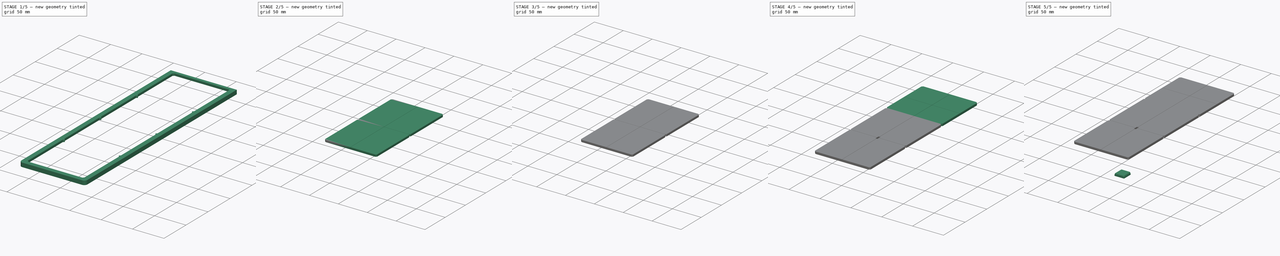
[diagram: build sequence overview — one tinted view per stage of 5, left to right]
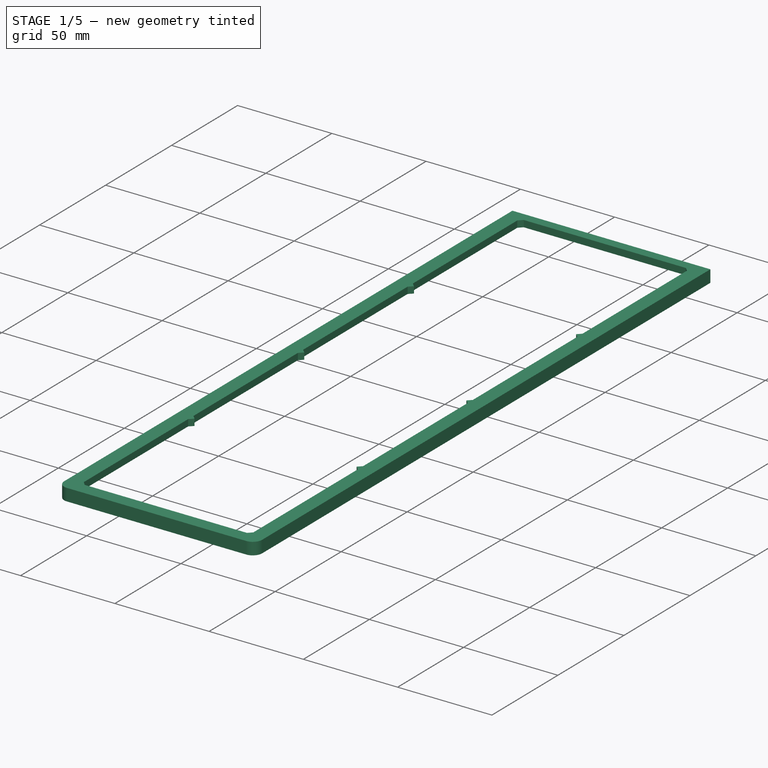
[diagram: stage 1 of 5 — iso view after this stage's code; geometry added in this stage tinted green]
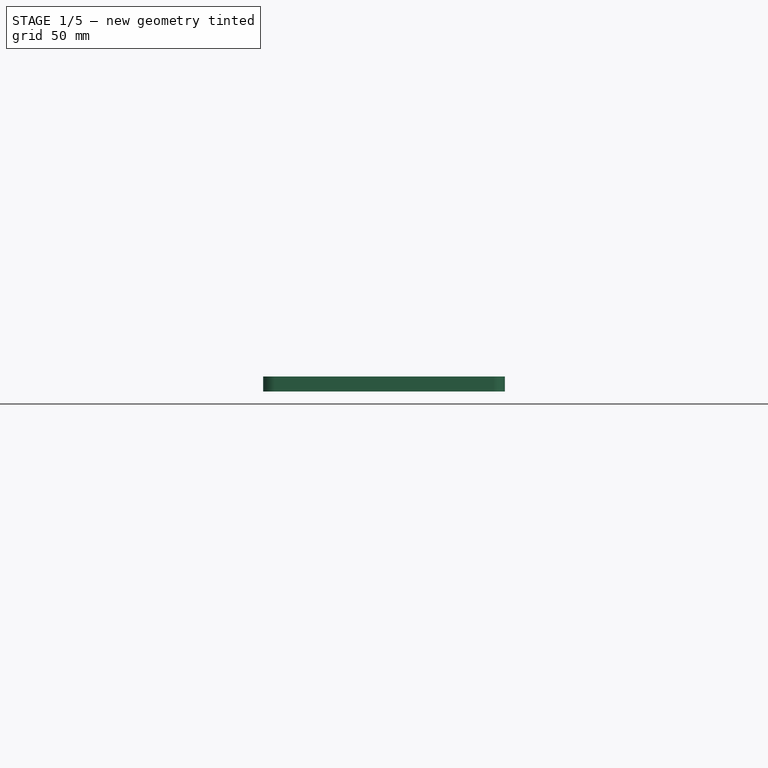
[diagram: stage 1 of 5 — front view after this stage's code; geometry added in this stage tinted green]
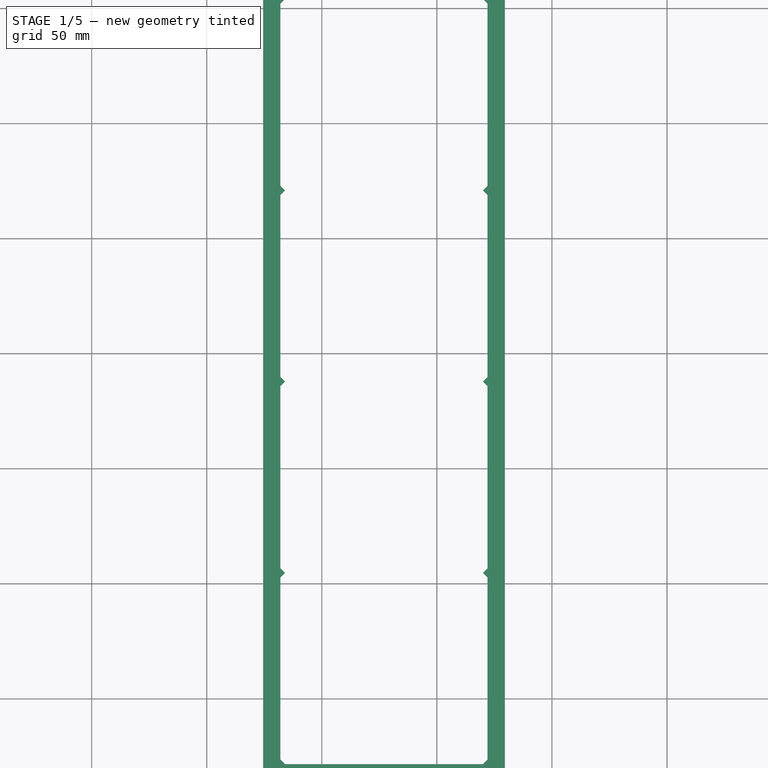
[diagram: stage 1 of 5 — top view after this stage's code; geometry added in this stage tinted green]
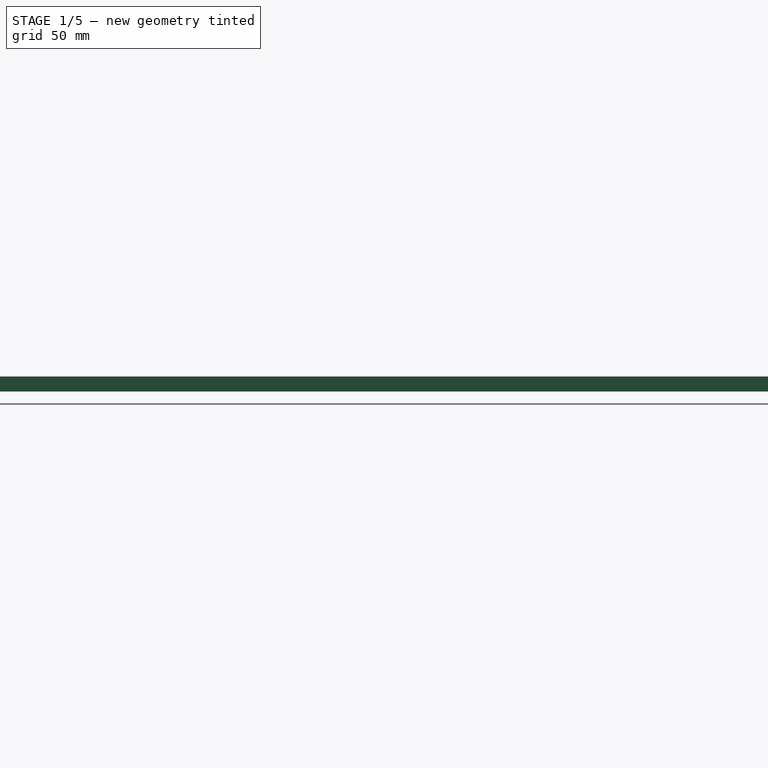
[diagram: stage 1 of 5 — right view after this stage's code; geometry added in this stage tinted green]
FCSTD DOCUMENT  (FreeCAD 1.1R20260325 (Git shallow))
Label: Decent400CapPrintRig
License: Creative Commons Attribution 4.0
objects: Sketcher::SketchObject×15, PartDesign::Pocket×9, App::Point×7, PartDesign::Body×7, PartDesign::Pad×6, PartDesign::FeatureBase×3, PartDesign::Fillet×2, PartDesign::SubShapeBinder×2, PartDesign::LinearPattern×2, PartDesign::Chamfer×1, Part::DatumPlane×1
note: 103 computed .brp shape members not serialized (recipe doc carries the construction recipe); baked Part::Feature solids carry a one-line shape summary decoded from their .brp

FEATURE [App::Point] Origin003
  Role = Origin
FEATURE [Sketcher::SketchObject] Sketch009
  ArcFitTolerance = 1e-06
  ExternalTypes = [0]
  FullyConstrained = false
  MakeInternals = false
  MapMode = 5
  _ExternalGeoVersion = 0
  sketch-geometry (4):
    g0: LineSegment StartX=24.522 StartY=342.965 StartZ=0 EndX=24.522 EndY=-35.535 EndZ=0
    g1: LineSegment StartX=24.522 StartY=-35.535 StartZ=0 EndX=129.522 EndY=-35.535 EndZ=0
    g2: LineSegment StartX=129.522 StartY=-35.535 StartZ=0 EndX=129.522 EndY=342.965 EndZ=0
    g3: LineSegment StartX=129.522 StartY=342.965 StartZ=0 EndX=24.522 EndY=342.965 EndZ=0
  constraints (10):
    c: Coincident(g0,g1)
    c: Coincident(g1,g2)
    c: Coincident(g2,g3)
    c: Coincident(g3,g0)
    c: Vertical(g0)
    c: Vertical(g2)
    c: Horizontal(g1)
    c: Horizontal(g3)
    c: Distance(g0,g2) = 105
    c: Distance(g1,g3) = 378.5
FEATURE [PartDesign::Pad] Pad
  Direction = (0,0,1)
  Length = 1.5
  Length2 = 2
  Profile = -> Sketch009
  ReferenceAxis = -> Sketch009 [N_Axis]
  SideType = 1
  Suppressed = false
  Type = 0
  Type2 = 0
FEATURE [PartDesign::Body] Body002  label="Test cap"
  AllowCompound = false
  Group = -> [Sketch012,Pad001,Sketch013,Pocket011,Sketch014,Pocket012,Sketch015,Pad002,Chamfer]
  Origin = -> Origin004
  Placement = pos=(48.422,-12.144,1.5e-15) rot=(1,0,0;3.14159rad)
  Size = 1
  Sizemm = 16
  Tip = -> Chamfer
  expr: Sizemm = Size * 19.05 - (19.05 - 16.7) - 0.5
FEATURE [PartDesign::Pocket] Pocket019
  BaseFeature = -> Pad
  Direction = (0,0,-1)
  Length = 5
  Length2 = 5
  Profile = -> Sketch010
  ReferenceAxis = -> Sketch010 [N_Axis]
  SideType = 0
  Suppressed = false
  Type = 1
  Type2 = 0
FEATURE [PartDesign::Fillet] Fillet
  Base = -> Pocket019 [Edge8,Edge2,Edge1,Edge5]
  BaseFeature = -> Pocket019
  Radius = 5
  SupportTransform = false
  Suppressed = false
  UseAllEdges = false
FEATURE [Sketcher::SketchObject] Sketch028
  ArcFitTolerance = 1e-06
  AttachmentSupport = -> [Fillet]
  ExternalGeometry = -> [Fillet]
  ExternalTypes = [0,0,0,0,0,0,0,0]
  FullyConstrained = true
  MakeInternals = false
  MapMode = 5
  Placement = pos=(0,0,-2) rot=(1,0,0;3.14159rad)
  _ExternalGeoVersion = 0
  sketch-geometry (8):
    g0: ArcOfCircle CenterX=29.522 CenterY=30.535 CenterZ=0 NormalX=0 NormalY=0 NormalZ=1 AngleXU=0 Radius=3 StartAngle=1.5708 EndAngle=3.14159
    g1: ArcOfCircle CenterX=124.522 CenterY=30.535 CenterZ=0 NormalX=0 NormalY=0 NormalZ=1 AngleXU=0 Radius=3 StartAngle=3e-16 EndAngle=1.5708
    g2: ArcOfCircle CenterX=124.522 CenterY=-337.965 CenterZ=0 NormalX=0 NormalY=0 NormalZ=1 AngleXU=0 Radius=3 StartAngle=4.71239 EndAngle=6.28319
    g3: ArcOfCircle CenterX=29.522 CenterY=-337.965 CenterZ=0 NormalX=0 NormalY=0 NormalZ=1 AngleXU=0 Radius=3 StartAngle=3.14159 EndAngle=4.71239
    g4: LineSegment StartX=29.522 StartY=33.535 StartZ=0 EndX=124.522 EndY=33.535 EndZ=0
    g5: LineSegment StartX=127.522 StartY=30.535 StartZ=0 EndX=127.522 EndY=-337.965 EndZ=0
    g6: LineSegment StartX=124.522 StartY=-340.965 StartZ=0 EndX=29.522 EndY=-340.965 EndZ=0
    g7: LineSegment StartX=26.522 StartY=-337.965 StartZ=0 EndX=26.522 EndY=30.535 EndZ=0
  constraints (24):
    c: Coincident(g0,g-3)
    c: Coincident(g1,g-5)
    c: Coincident(g2,g-7)
    c: Coincident(g3,g-9)
    c: Horizontal(g2,g-7)
    c: Vertical(g2,g-8)
    c: Vertical(g3,g-9)
    c: Horizontal(g-10,g3)
    c: Horizontal(g-10,g0)
    c: Vertical(g0,g-4)
    c: Vertical(g-5,g1)
    c: Horizontal(g1,g-6)
    c: Coincident(g4,g0)
    c: Coincident(g4,g1)
    c: Horizontal(g4)
    c: Coincident(g5,g1)
    c: Coincident(g5,g2)
    c: Vertical(g5)
    c: Coincident(g6,g2)
    c: Coincident(g6,g3)
    c: Horizontal(g6)
    c: Coincident(g7,g3)
    c: Coincident(g7,g0)
    c: DistanceY(g0,g-4) = 2
FEATURE [PartDesign::Pad] Pad008
  BaseFeature = -> Fillet
  Direction = (0,0,-1)
  Length = 3
  Length2 = 10
  Profile = -> Sketch028
  ReferenceAxis = -> Sketch028 [N_Axis]
  SideType = 0
  Suppressed = false
  Type = 0
  Type2 = 0
FEATURE [PartDesign::Pocket] Pocket020
  BaseFeature = -> Pad008
  Direction = (0,1e-16,1)
  Length = 5
  Length2 = 5
  Profile = -> Sketch011
  ReferenceAxis = -> Sketch011 [N_Axis]
  Refine = true
  SideType = 2
  Suppressed = false
  Type = 1
  Type2 = 0
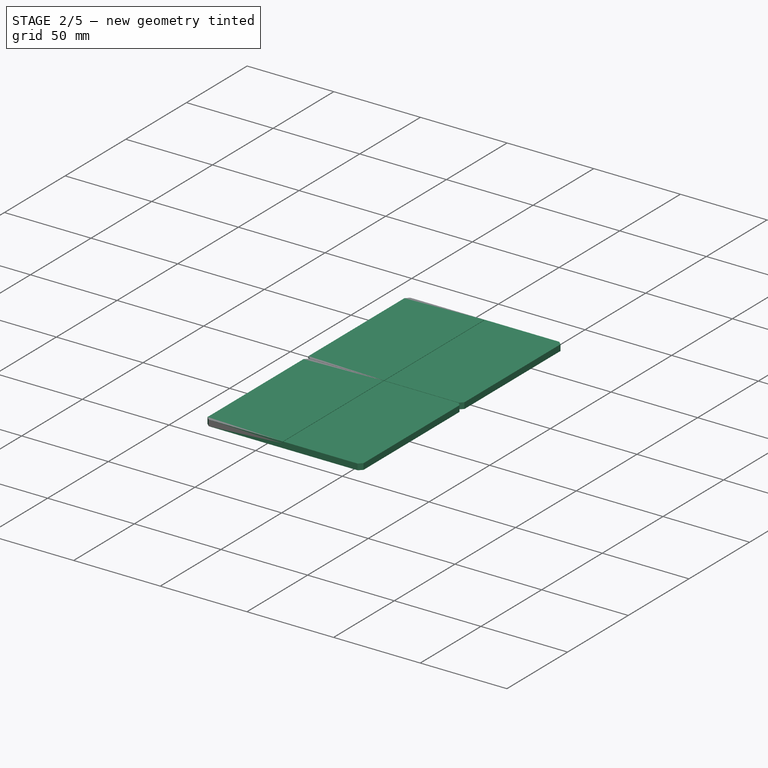
[diagram: stage 2 of 5 — iso view after this stage's code; geometry added in this stage tinted green]
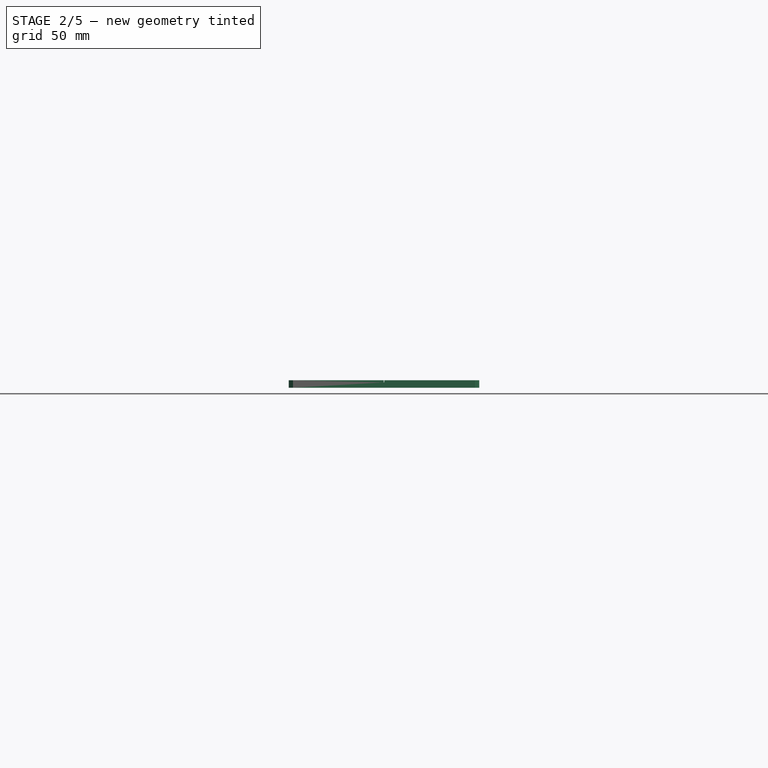
[diagram: stage 2 of 5 — front view after this stage's code; geometry added in this stage tinted green]
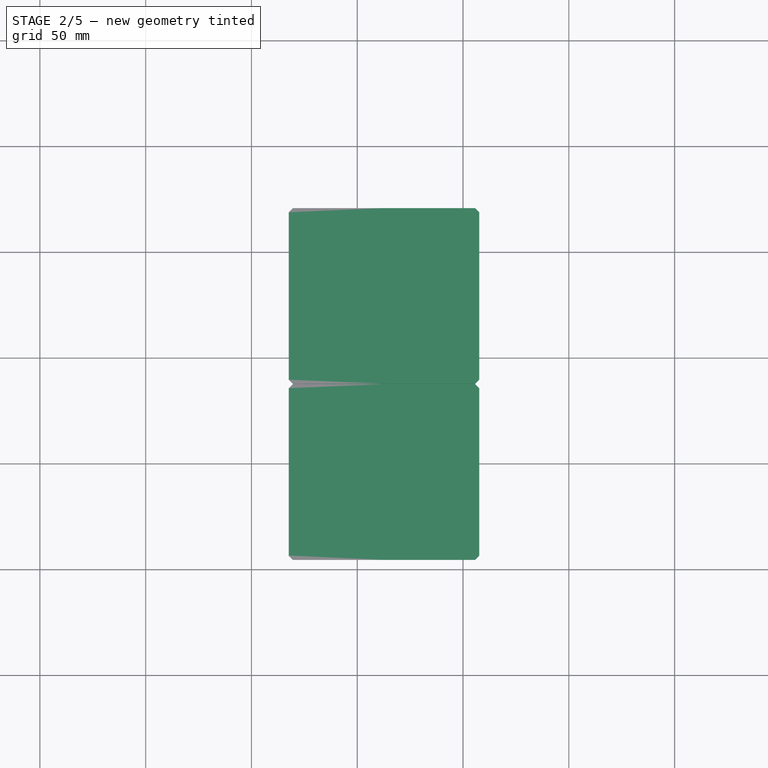
[diagram: stage 2 of 5 — top view after this stage's code; geometry added in this stage tinted green]
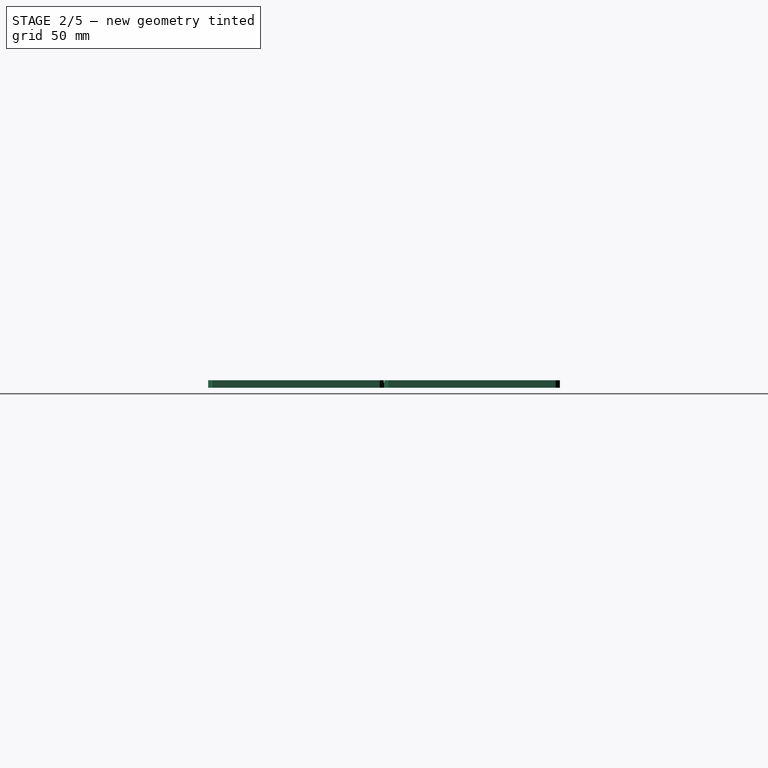
[diagram: stage 2 of 5 — right view after this stage's code; geometry added in this stage tinted green]
FEATURE [PartDesign::Body] Body009  label="SingleFixture"
  AllowCompound = true
  Group = -> [Binder005,Sketch031,Pad010,Sketch033,Pocket022]
  Origin = -> Origin018
  Tip = -> Pocket022
FEATURE [PartDesign::Fillet] Fillet001
  Base = -> Pocket020 [Edge33,Edge39]
  BaseFeature = -> Pocket020
  Radius = 1.5
  SupportTransform = false
  Suppressed = false
  UseAllEdges = false
FEATURE [PartDesign::Body] Body001  label="Centering device for mini plate"
  AllowCompound = false
  Group = -> [Sketch009,Pad,Sketch010,Sketch011,Pocket019,Fillet,Sketch028,Pad008,Pocket020,Fillet001]
  Origin = -> Origin002
  Placement = pos=(139.67,0,1.71e-14) rot=(0,1,0;3.14159rad)
  Tip = -> Fillet001
FEATURE [PartDesign::Pad] Pad011
  Direction = (0,0,-1)
  Length = 10
  Length2 = 10
  Profile = -> Sketch030
  ReferenceAxis = -> Sketch030 [N_Axis]
  SideType = 0
  Suppressed = false
  Type = 3
  Type2 = 0
  UpToFace = -> Binder [Face39]
FEATURE [Sketcher::SketchObject] Sketch034
  ArcFitTolerance = 1e-06
  AttachmentSupport = -> [Pad011]
  ExternalTypes = [0,0]
  FullyConstrained = true
  MakeInternals = false
  MapMode = 5
  Placement = pos=(-2e-16,0,2) rot=(0,0,1;0rad)
  _ExternalGeoVersion = 0
  sketch-geometry (14):
    g0: LineSegment [constr] StartX=62.648 StartY=220.84 StartZ=0 EndX=62.648 EndY=54.59 EndZ=0
    g1: LineSegment [constr] StartX=19.648 StartY=137.715 StartZ=0 EndX=105.648 EndY=137.715 EndZ=0
    g2: LineSegment StartX=19.523 StartY=137.84 StartZ=0 EndX=62.523 EndY=137.84 EndZ=0
    g3: LineSegment StartX=62.523 StartY=137.84 StartZ=0 EndX=62.523 EndY=220.84 EndZ=0
    g4: LineSegment StartX=105.773 StartY=137.84 StartZ=0 EndX=62.773 EndY=137.84 EndZ=0
    g5: LineSegment StartX=62.773 StartY=137.84 StartZ=0 EndX=62.773 EndY=220.84 EndZ=0
    g6: LineSegment StartX=19.523 StartY=137.59 StartZ=0 EndX=62.523 EndY=137.59 EndZ=0
    g7: LineSegment StartX=62.523 StartY=137.59 StartZ=0 EndX=62.523 EndY=54.59 EndZ=0
    g8: LineSegment StartX=62.773 StartY=137.59 StartZ=0 EndX=62.773 EndY=54.59 EndZ=0
    g9: LineSegment StartX=105.773 StartY=137.59 StartZ=0 EndX=62.773 EndY=137.59 EndZ=0
    g10: LineSegment StartX=62.523 StartY=220.84 StartZ=0 EndX=62.773 EndY=220.84 EndZ=0
    g11: LineSegment StartX=105.773 StartY=137.84 StartZ=0 EndX=105.773 EndY=137.59 EndZ=0
    g12: LineSegment StartX=62.773 StartY=54.59 StartZ=0 EndX=62.523 EndY=54.59 EndZ=0
    g13: LineSegment StartX=19.523 StartY=137.59 StartZ=0 EndX=19.523 EndY=137.84 EndZ=0
  constraints (37):
    c: Symmetric(g0,g0,g1)
    c: Horizontal(g2)
    c: Coincident(g3,g2)
    c: Vertical(g3)
    c: Coincident(g5,g4)
    c: Coincident(g7,g6)
    c: Coincident(g8,g9)
    c: Coincident(g10,g3)
    c: Coincident(g10,g5)
    c: Horizontal(g10)
    c: Coincident(g11,g4)
    c: Coincident(g11,g9)
    c: Vertical(g11)
    c: Coincident(g12,g8)
    c: Coincident(g12,g7)
    c: Horizontal(g12)
    c: Coincident(g13,g6)
    c: Coincident(g13,g2)
    c: Equal(g13,g10)
    c: Vertical(g6,g2)
    c: Vertical(g4,g8)
    c: Horizontal(g2,g4)
    c: Horizontal(g6,g8)
    c: Vertical(g7)
    c: Horizontal(g6)
    c: Horizontal(g9)
    c: Symmetric(g2,g6,g1)
    c: Vertical(g5)
    c: Vertical(g8)
    c: Symmetric(g7,g8,g0)
    c: Symmetric(g4,g2,g0)
    c: DistanceX(g10,g10) = 0.25
    c: Symmetric(g-3,g-3,g0)
    c: Symmetric(g3,g5,g0)
    c: Coincident(g1,g-4)
    c: PointOnObject(g2,g-4)
    c: Vertical(g-3,g1)
FEATURE [PartDesign::Pocket] Pocket
  BaseFeature = -> Pad011
  Direction = (0,0,-1)
  Length = 1
  Length2 = 5
  Profile = -> Sketch034
  ReferenceAxis = -> Sketch034 [N_Axis]
  SideType = 0
  Suppressed = false
  Type = 0
  Type2 = 0
FEATURE [PartDesign::Body] Body010  label="Wide key fixture plate"
  AllowCompound = false
  Group = -> [Clone001,Sketch,Pocket024,LinearPattern001]
  Origin = -> Origin023
  Placement = pos=(204.403,0,0) rot=(0,0,1;0rad)
  Tip = -> LinearPattern001
FEATURE [PartDesign::FeatureBase] Clone002
  BaseFeature = -> Pocket
  Suppressed = false
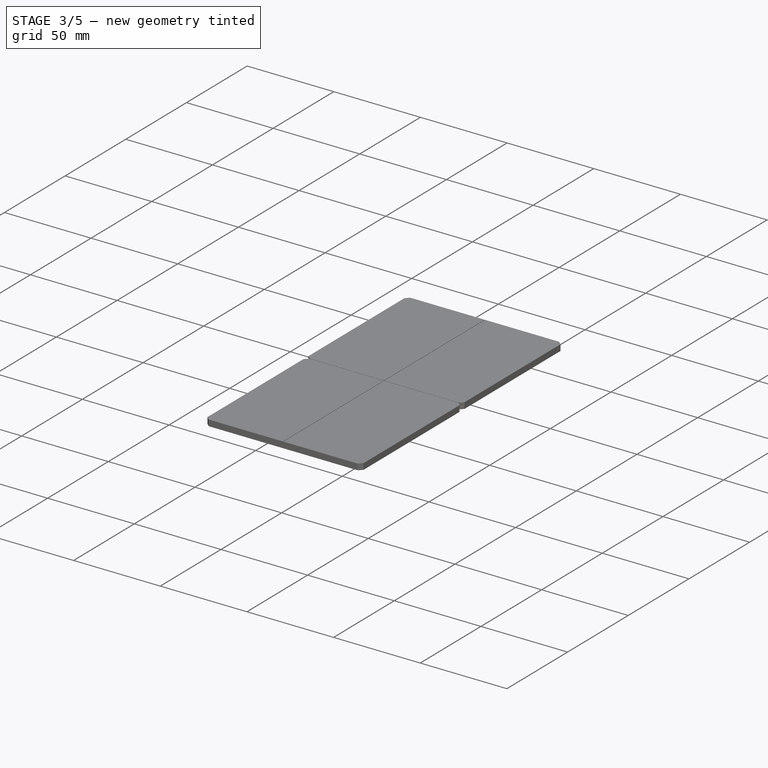
[diagram: stage 3 of 5 — iso view after this stage's code; geometry added in this stage tinted green]
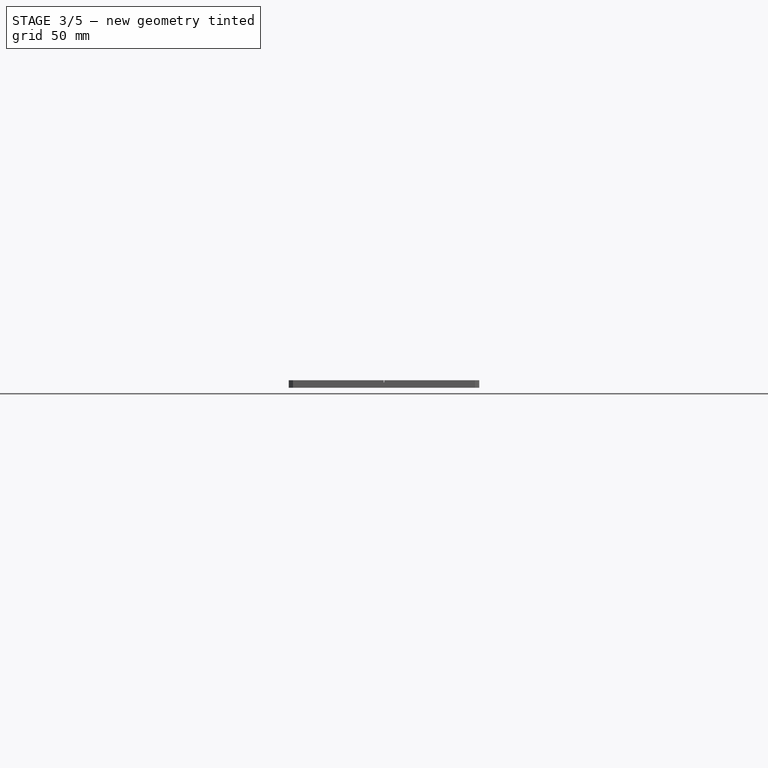
[diagram: stage 3 of 5 — front view after this stage's code; geometry added in this stage tinted green]
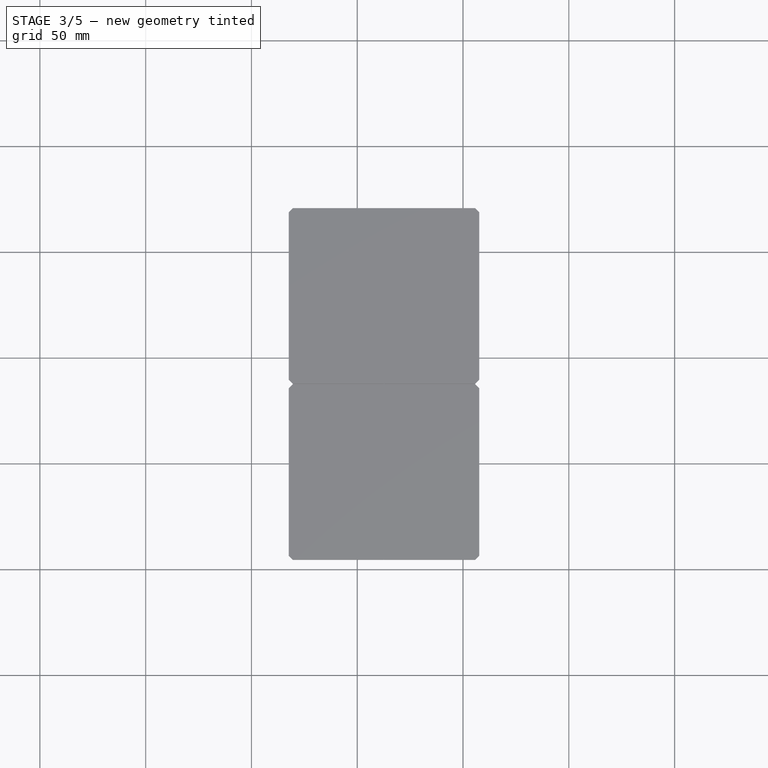
[diagram: stage 3 of 5 — top view after this stage's code; geometry added in this stage tinted green]
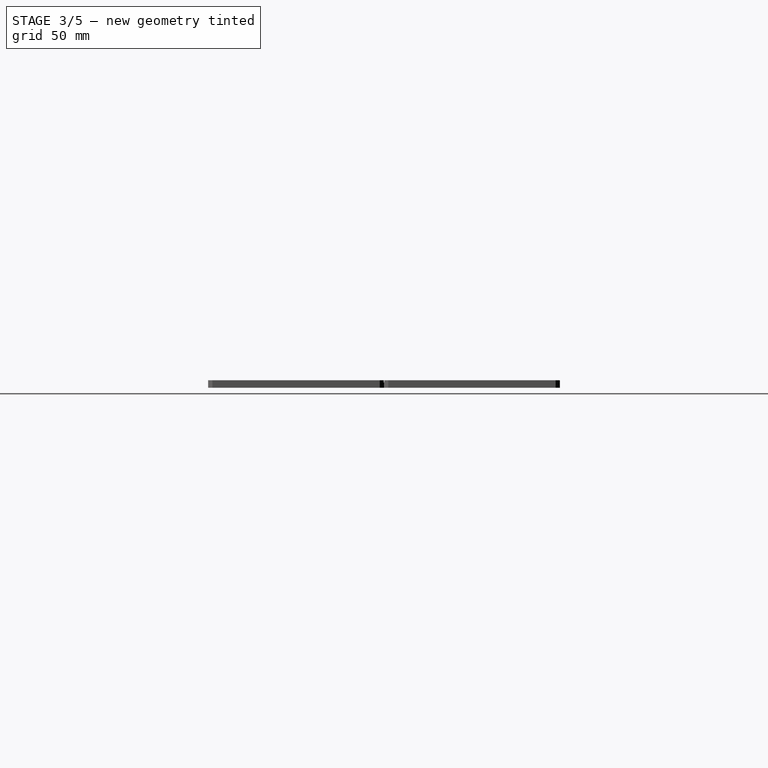
[diagram: stage 3 of 5 — right view after this stage's code; geometry added in this stage tinted green]
FEATURE [PartDesign::Body] Body008  label="Center Fixture"
  AllowCompound = false
  Group = -> [Binder,Sketch030,Sketch034,Pad011,Pocket]
  Origin = -> Origin016
  Tip = -> Pocket
FEATURE [App::Point] Origin022  label="Origin030"
  Role = Origin
FEATURE [PartDesign::FeatureBase] Clone
  BaseFeature = -> Body008
  Suppressed = false
FEATURE [PartDesign::Body] Body  label="1U fixture plate"
  AllowCompound = false
  Group = -> [Clone,DatumPlane,Sketch032,Pocket023,LinearPattern]
  Origin = -> Origin
  Placement = pos=(105.687,0,0) rot=(0,0,1;0rad)
  Tip = -> LinearPattern
FEATURE [App::Point] Origin024  label="Origin032"
  Role = Origin
FEATURE [PartDesign::FeatureBase] Clone001
  BaseFeature = -> Body008
  Suppressed = false
FEATURE [Sketcher::SketchObject] Sketch
  ArcFitTolerance = 1e-06
  AttachmentSupport = -> [Clone001]
  ExternalGeometry = -> [Clone001]
  ExternalTypes = [0,0]
  FullyConstrained = true
  MakeInternals = false
  MapMode = 5
  Placement = pos=(-2e-16,0,2) rot=(0,0,1;0rad)
  _ExternalGeoVersion = 0
  sketch-geometry (31):
    g0: GeomPoint [constr] X=62.648 Y=137.715 Z=0
    g1: LineSegment StartX=41.148 StartY=141.215 StartZ=0 EndX=41.148 EndY=134.215 EndZ=0
    g2: LineSegment StartX=41.148 StartY=134.215 StartZ=0 EndX=44.148 EndY=134.215 EndZ=0
    g3: LineSegment StartX=44.148 StartY=134.215 StartZ=0 EndX=44.148 EndY=141.215 EndZ=0
    g4: LineSegment StartX=44.148 StartY=141.215 StartZ=0 EndX=41.148 EndY=141.215 EndZ=0
    g5: GeomPoint [constr] X=42.648 Y=137.715 Z=0
    g6: LineSegment StartX=40.198 StartY=152.615 StartZ=0 EndX=43.098 EndY=152.615 EndZ=0
    g7: LineSegment StartX=43.098 StartY=152.615 StartZ=0 EndX=43.098 EndY=151.165 EndZ=0
    g8: LineSegment StartX=43.098 StartY=151.165 StartZ=0 EndX=44.548 EndY=151.165 EndZ=0
    g9: LineSegment StartX=44.548 StartY=151.165 StartZ=0 EndX=44.548 EndY=148.265 EndZ=0
    g10: LineSegment StartX=44.548 StartY=148.265 StartZ=0 EndX=43.098 EndY=148.265 EndZ=0
    g11: LineSegment StartX=43.098 StartY=148.265 StartZ=0 EndX=43.098 EndY=146.815 EndZ=0
    g12: LineSegment StartX=43.098 StartY=146.815 StartZ=0 EndX=40.198 EndY=146.815 EndZ=0
    g13: LineSegment StartX=40.198 StartY=146.815 StartZ=0 EndX=40.198 EndY=148.265 EndZ=0
    g14: LineSegment StartX=40.198 StartY=148.265 StartZ=0 EndX=38.748 EndY=148.265 EndZ=0
    g15: LineSegment StartX=38.748 StartY=148.265 StartZ=0 EndX=38.748 EndY=151.165 EndZ=0
    g16: LineSegment StartX=38.748 StartY=151.165 StartZ=0 EndX=40.198 EndY=151.165 EndZ=0
    g17: LineSegment StartX=40.198 StartY=151.165 StartZ=0 EndX=40.198 EndY=152.615 EndZ=0
    g18: LineSegment [constr] StartX=19.648 StartY=137.715 StartZ=0 EndX=62.648 EndY=137.715 EndZ=0
    g19: LineSegment StartX=40.198 StartY=122.815 StartZ=0 EndX=43.098 EndY=122.815 EndZ=0
    g20: LineSegment StartX=43.098 StartY=122.815 StartZ=0 EndX=43.098 EndY=124.265 EndZ=0
    g21: LineSegment StartX=43.098 StartY=124.265 StartZ=0 EndX=44.548 EndY=124.265 EndZ=0
    g22: LineSegment StartX=44.548 StartY=124.265 StartZ=0 EndX=44.548 EndY=127.165 EndZ=0
    g23: LineSegment StartX=44.548 StartY=127.165 StartZ=0 EndX=43.098 EndY=127.165 EndZ=0
    g24: LineSegment StartX=43.098 StartY=127.165 StartZ=0 EndX=43.098 EndY=128.615 EndZ=0
    g25: LineSegment StartX=43.098 StartY=128.615 StartZ=0 EndX=40.198 EndY=128.615 EndZ=0
    g26: LineSegment StartX=40.198 StartY=124.265 StartZ=0 EndX=40.198 EndY=122.815 EndZ=0
    g27: LineSegment StartX=38.748 StartY=124.265 StartZ=0 EndX=40.198 EndY=124.265 EndZ=0
    g28: LineSegment StartX=38.748 StartY=127.165 StartZ=0 EndX=38.748 EndY=124.265 EndZ=0
    g29: LineSegment StartX=40.198 StartY=127.165 StartZ=0 EndX=38.748 EndY=127.165 EndZ=0
    g30: LineSegment StartX=40.198 StartY=128.615 StartZ=0 EndX=40.198 EndY=127.165 EndZ=0
  constraints (87):
    c: Symmetric(g-3,g-4,g0)
    c: Coincident(g1,g2)
    c: Coincident(g2,g3)
    c: Coincident(g3,g4)
    c: Coincident(g4,g1)
    c: Vertical(g1)
    c: Vertical(g3)
    c: Horizontal(g2)
    c: Horizontal(g4)
    c: DistanceX(g4,g4) = 3
    c: DistanceY(g3,g3) = 7
    c: Symmetric(g2,g1,g5)
    c: Horizontal(g5,g0)
    c: DistanceX(g5,g0) = 20
    c: Horizontal(g6)
    c: Coincident(g6,g7)
    c: Vertical(g7)
    c: Coincident(g7,g8)
    c: Horizontal(g8)
    c: Coincident(g8,g9)
    c: Vertical(g9)
    c: Coincident(g9,g10)
    c: Horizontal(g10)
    c: Coincident(g10,g11)
    c: Vertical(g11)
    c: Coincident(g11,g12)
    c: Horizontal(g12)
    c: Coincident(g12,g13)
    c: Vertical(g13)
    c: Coincident(g13,g14)
    c: Horizontal(g14)
    c: Coincident(g14,g15)
    c: Vertical(g15)
    c: Coincident(g15,g16)
    c: Horizontal(g16)
    c: Coincident(g16,g17)
    c: Coincident(g17,g6)
    c: Vertical(g17)
    c: Horizontal(g16,g7)
    c: Horizontal(g13,g10)
    c: Vertical(g16,g13)
    c: Vertical(g7,g10)
    c: Equal(g7,g8)
    c: Equal(g6,g9)
    c: Equal(g8,g13)
    c: Equal(g13,g14)
    c: DistanceX(g15,g8) = 5.8
    c: DistanceX(g6,g6) = 2.9
    c: Coincident(g18,g-3)
    c: Coincident(g18,g0)
    c: DistanceY(g1,g12) = 5.6
    c: DistanceX(g12,g1) = 0.95
    c: Coincident(g19,g20)
    c: Coincident(g20,g21)
    c: Coincident(g21,g22)
    c: Coincident(g22,g23)
    c: Coincident(g23,g24)
    c: Coincident(g24,g25)
    c: Coincident(g25,g30)
    c: Coincident(g30,g29)
    c: Coincident(g29,g28)
    c: Coincident(g28,g27)
    c: Coincident(g27,g26)
    c: Coincident(g26,g19)
    c: Equal(g20,g21)
    c: Equal(g19,g22)
    c: Equal(g21,g30)
    c: Equal(g30,g29)
    c: Vertical(g12,g25)
    c: Vertical(g9,g22)
    c: Vertical(g14,g28)
    c: Equal(g24,g23)
    c: Equal(g23,g27)
    c: Equal(g27,g26)
    c: Equal(g26,g8)
    c: Equal(g25,g22)
    c: Vertical(g30)
    c: Vertical(g20)
    c: Vertical(g28)
    c: Horizontal(g25)
    c: Horizontal(g23)
    c: Horizontal(g21)
    c: Horizontal(g19)
    c: Horizontal(g29)
    c: Horizontal(g27)
    c: Vertical(g26)
    c: Symmetric(g11,g24,g18)
FEATURE [PartDesign::Pocket] Pocket024
  BaseFeature = -> Clone001
  Direction = (0,0,-1)
  Length = 5
  Length2 = 5
  Profile = -> Sketch
  ReferenceAxis = -> Sketch [N_Axis]
  SideType = 0
  Suppressed = false
  Type = 1
  Type2 = 0
FEATURE [PartDesign::LinearPattern] LinearPattern001
  BaseFeature = -> Pocket024
  Direction = -> Sketch [H_Axis]
  Direction2 = -> Sketch [V_Axis]
  Length = 40
  Length2 = 100
  Mode = 1
  Mode2 = 0
  Occurrences = 3
  Occurrences2 = 1
  Offset = 20
  Offset2 = 100
  Originals = -> [Pocket024]
  Reversed2 = false
  SpacingPattern = [20]
  SpacingPattern2 = [0]
  Spacings = [-1,-1]
  Suppressed = false
  TransformMode = 0
FEATURE [App::Point] Origin030  label="Origin036"
  Role = Origin
FEATURE [Sketcher::SketchObject] Sketch035
  ArcFitTolerance = 1e-06
  AttachmentSupport = -> [Clone002]
  ExternalGeometry = -> [Clone002]
  ExternalTypes = [0,0]
  FullyConstrained = true
  MakeInternals = false
  MapMode = 5
  Placement = pos=(-2e-16,0,2) rot=(0,0,1;0rad)
  _ExternalGeoVersion = 0
  sketch-geometry (33):
    g0: GeomPoint [constr] X=62.648 Y=137.715 Z=0
    g1: LineSegment StartX=61.148 StartY=141.215 StartZ=0 EndX=61.148 EndY=134.215 EndZ=0
    g2: LineSegment StartX=61.148 StartY=134.215 StartZ=0 EndX=64.148 EndY=134.215 EndZ=0
    g3: LineSegment StartX=64.148 StartY=134.215 StartZ=0 EndX=64.148 EndY=141.215 EndZ=0
    g4: LineSegment StartX=64.148 StartY=141.215 StartZ=0 EndX=61.148 EndY=141.215 EndZ=0
    g5: GeomPoint [constr] X=62.648 Y=137.715 Z=0
    g6: LineSegment StartX=60.198 StartY=178.615 StartZ=0 EndX=63.098 EndY=178.615 EndZ=0
    g7: LineSegment StartX=63.098 StartY=178.615 StartZ=0 EndX=63.098 EndY=177.165 EndZ=0
    g8: LineSegment StartX=63.098 StartY=177.165 StartZ=0 EndX=64.548 EndY=177.165 EndZ=0
    g9: LineSegment StartX=64.548 StartY=177.165 StartZ=0 EndX=64.548 EndY=174.265 EndZ=0
    g10: LineSegment StartX=64.548 StartY=174.265 StartZ=0 EndX=63.098 EndY=174.265 EndZ=0
    g11: LineSegment StartX=63.098 StartY=174.265 StartZ=0 EndX=63.098 EndY=172.815 EndZ=0
    g12: LineSegment StartX=63.098 StartY=172.815 StartZ=0 EndX=60.198 EndY=172.815 EndZ=0
    g13: LineSegment StartX=60.198 StartY=172.815 StartZ=0 EndX=60.198 EndY=174.265 EndZ=0
    g14: LineSegment StartX=60.198 StartY=174.265 StartZ=0 EndX=58.748 EndY=174.265 EndZ=0
    g15: LineSegment StartX=58.748 StartY=174.265 StartZ=0 EndX=58.748 EndY=177.165 EndZ=0
    g16: LineSegment StartX=58.748 StartY=177.165 StartZ=0 EndX=60.198 EndY=177.165 EndZ=0
    g17: LineSegment StartX=60.198 StartY=177.165 StartZ=0 EndX=60.198 EndY=178.615 EndZ=0
    g18: LineSegment StartX=60.198 StartY=96.815 StartZ=0 EndX=63.098 EndY=96.815 EndZ=0
    g19: LineSegment StartX=63.098 StartY=96.815 StartZ=0 EndX=63.098 EndY=98.265 EndZ=0
    g20: LineSegment StartX=63.098 StartY=98.265 StartZ=0 EndX=64.548 EndY=98.265 EndZ=0
    g21: LineSegment StartX=64.548 StartY=98.265 StartZ=0 EndX=64.548 EndY=101.165 EndZ=0
    g22: LineSegment StartX=64.548 StartY=101.165 StartZ=0 EndX=63.098 EndY=101.165 EndZ=0
    g23: LineSegment StartX=63.098 StartY=101.165 StartZ=0 EndX=63.098 EndY=102.615 EndZ=0
    g24: LineSegment StartX=63.098 StartY=102.615 StartZ=0 EndX=60.198 EndY=102.615 EndZ=0
    g25: LineSegment StartX=60.198 StartY=98.265 StartZ=0 EndX=60.198 EndY=96.815 EndZ=0
    g26: LineSegment StartX=58.748 StartY=98.265 StartZ=0 EndX=60.198 EndY=98.265 EndZ=0
    g27: LineSegment StartX=58.748 StartY=101.165 StartZ=0 EndX=58.748 EndY=98.265 EndZ=0
    g28: LineSegment StartX=60.198 StartY=101.165 StartZ=0 EndX=58.748 EndY=101.165 EndZ=0
    g29: LineSegment StartX=60.198 StartY=102.615 StartZ=0 EndX=60.198 EndY=101.165 EndZ=0
    g30: GeomPoint [constr] X=62.648 Y=137.715 Z=0
    g31: GeomPoint [constr] X=61.648 Y=99.715 Z=0
    g32: GeomPoint [constr] X=61.648 Y=175.715 Z=0
  constraints (90):
    c: Coincident(g1,g2)
    c: Coincident(g2,g3)
    c: Coincident(g3,g4)
    c: Coincident(g4,g1)
    c: Vertical(g1)
    c: Vertical(g3)
    c: Horizontal(g2)
    c: Horizontal(g4)
    c: DistanceX(g4,g4) = 3
    c: DistanceY(g3,g3) = 7
    c: Symmetric(g2,g1,g5)
    c: Horizontal(g6)
    c: Coincident(g6,g7)
    c: Vertical(g7)
    c: Coincident(g7,g8)
    c: Horizontal(g8)
    c: Coincident(g8,g9)
    c: Vertical(g9)
    c: Coincident(g9,g10)
    c: Horizontal(g10)
    c: Coincident(g10,g11)
    c: Vertical(g11)
    c: Coincident(g11,g12)
    c: Horizontal(g12)
    c: Coincident(g12,g13)
    c: Vertical(g13)
    c: Coincident(g13,g14)
    c: Horizontal(g14)
    c: Coincident(g14,g15)
    c: Vertical(g15)
    c: Coincident(g15,g16)
    c: Horizontal(g16)
    c: Coincident(g16,g17)
    c: Coincident(g17,g6)
    c: Vertical(g17)
    c: Horizontal(g16,g7)
    c: Horizontal(g13,g10)
    c: Vertical(g16,g13)
    c: Vertical(g7,g10)
    c: Equal(g7,g8)
    c: Equal(g6,g9)
    c: Equal(g8,g13)
    c: Equal(g13,g14)
    c: DistanceX(g15,g8) = 5.8
    c: DistanceX(g6,g6) = 2.9
    c: DistanceX(g12,g1) = 0.95
    c: Coincident(g18,g19)
    c: Coincident(g19,g20)
    c: Coincident(g20,g21)
    c: Coincident(g21,g22)
    c: Coincident(g22,g23)
    c: Coincident(g23,g24)
    c: Coincident(g24,g29)
    c: Coincident(g29,g28)
    c: Coincident(g28,g27)
    c: Coincident(g27,g26)
    c: Coincident(g26,g25)
    c: Coincident(g25,g18)
    c: Equal(g19,g20)
    c: Equal(g18,g21)
    c: Equal(g20,g29)
    c: Equal(g29,g28)
    c: Vertical(g12,g24)
    c: Vertical(g9,g21)
    c: Vertical(g14,g27)
    c: Equal(g23,g22)
    c: Equal(g22,g26)
    c: Equal(g26,g25)
    c: Equal(g25,g8)
    c: Equal(g24,g21)
    c: Vertical(g29)
    c: Vertical(g19)
    c: Vertical(g27)
    c: Horizontal(g24)
    c: Horizontal(g22)
    c: Horizontal(g20)
    c: Horizontal(g18)
    c: Horizontal(g28)
    c: Horizontal(g26)
    c: Vertical(g25)
    c: Vertical(g23)
    c: Symmetric(g-4,g-3,g30)
    c: Vertical(g30,g0)
    c: Coincident(g5,g0)
    c: Horizontal(g0,g30)
    c: Symmetric(g13,g7,g32)
    c: Symmetric(g25,g22,g31)
    c: DistanceY(g31,g30) = 38
    c: DistanceY(g30,g32) = 38
    c: DistanceY(g31,g32) = 76
FEATURE [PartDesign::Pocket] Pocket028
  BaseFeature = -> Clone002
  Direction = (0,0,-1)
  Length = 5
  Length2 = 5
  Profile = -> Sketch035
  ReferenceAxis = -> Sketch035 [N_Axis]
  SideType = 0
  Suppressed = false
  Type = 1
  Type2 = 0
FEATURE [PartDesign::Body] Body013  label="Space bar fixture plate"
  AllowCompound = false
  Group = -> [Clone002,Sketch035,Pocket028]
  Origin = -> Origin029
  Placement = pos=(303.261,0,0) rot=(0,0,1;0rad)
  Tip = -> Pocket028
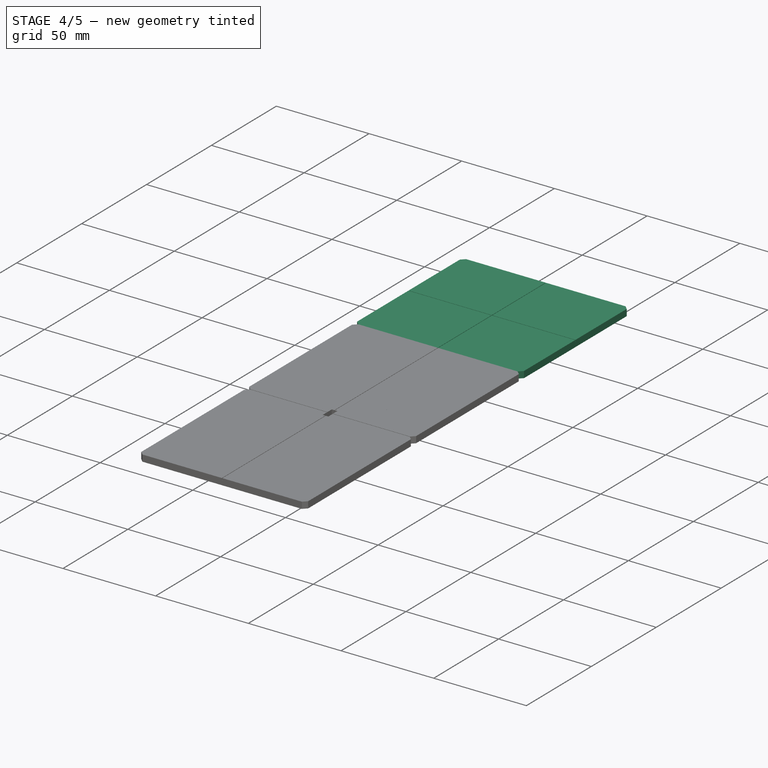
[diagram: stage 4 of 5 — iso view after this stage's code; geometry added in this stage tinted green]
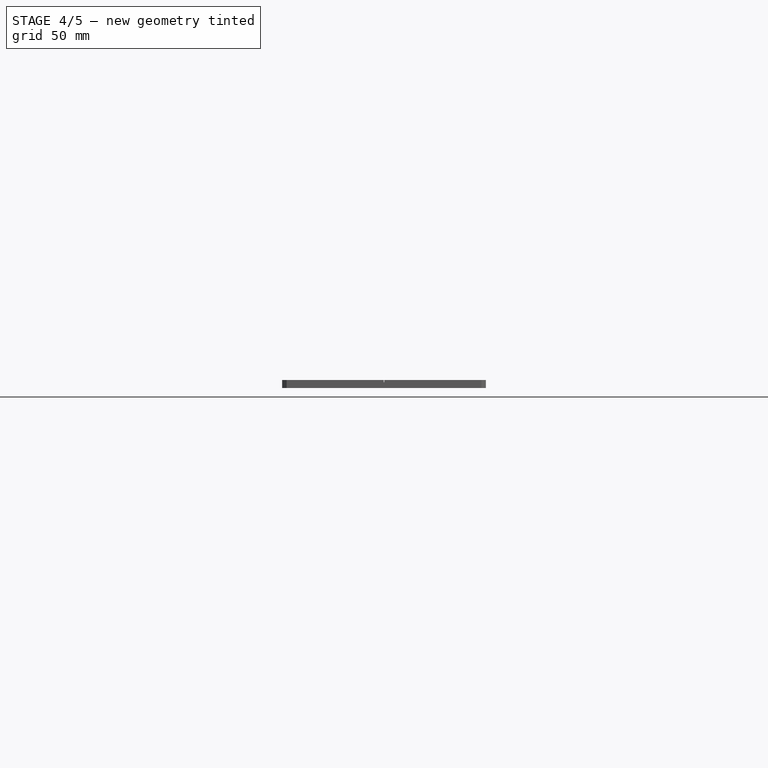
[diagram: stage 4 of 5 — front view after this stage's code; geometry added in this stage tinted green]
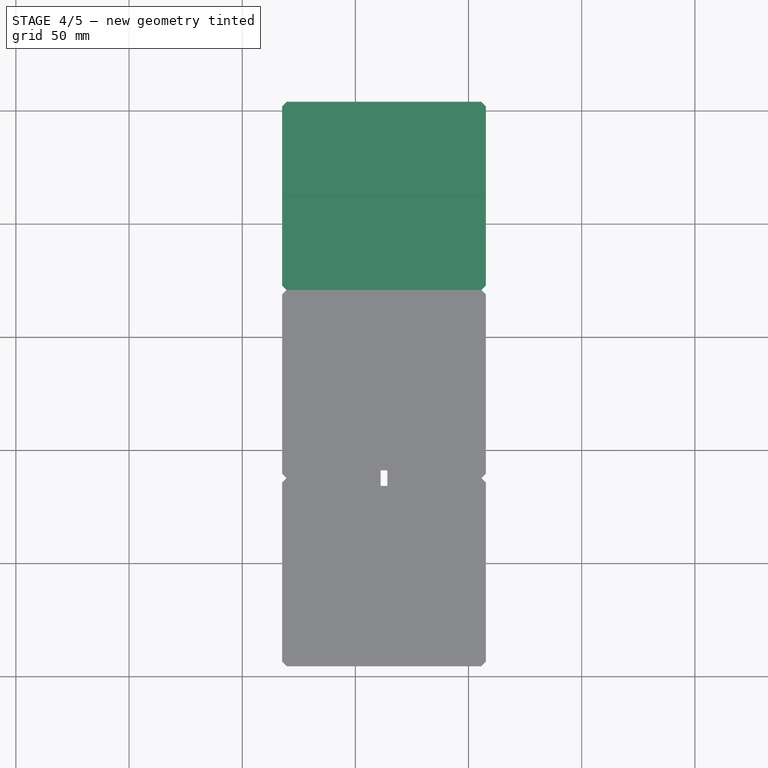
[diagram: stage 4 of 5 — top view after this stage's code; geometry added in this stage tinted green]
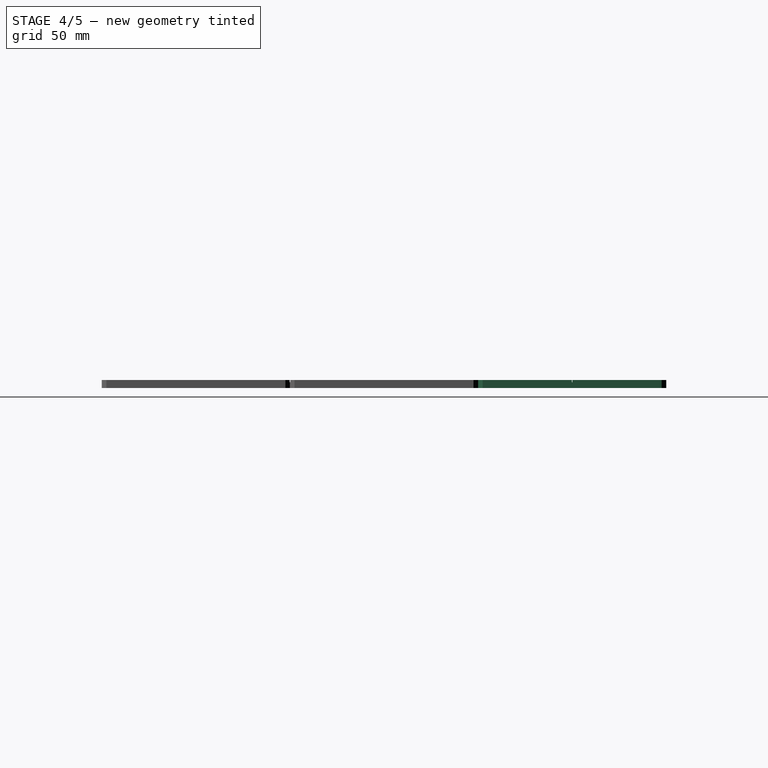
[diagram: stage 4 of 5 — right view after this stage's code; geometry added in this stage tinted green]
FEATURE [App::Point] Origin017  label="Origin022"
  Role = Origin
FEATURE [PartDesign::SubShapeBinder] Binder
  BindCopyOnChange = 0
  BindMode = 0
  ClaimChildren = false
  Context = -> Body008 [Binder.]
  Fuse = false
  MakeFace = true
  OffsetFill = false
  OffsetIntersection = false
  OffsetJoinType = 0
  OffsetOpenResult = false
  PartialLoad = false
  Refine = true
  Relative = true
  Support = -> [Body001]
  _Version = 2
FEATURE [Sketcher::SketchObject] Sketch030
  ArcFitTolerance = 1e-06
  AttachmentSupport = -> [Binder]
  ExternalGeometry = -> [Binder]
  ExternalTypes = [0,0,0,0,0,0,0,0,0,0,0,0]
  FullyConstrained = true
  MakeInternals = false
  MapMode = 5
  Placement = pos=(0,0,-1.5) rot=(1,0,0;3.14159rad)
  _ExternalGeoVersion = 0
  sketch-geometry (2):
    g0: LineSegment StartX=19.648 StartY=-220.84 StartZ=0 EndX=105.648 EndY=-220.84 EndZ=0
    g1: LineSegment StartX=105.648 StartY=-54.59 StartZ=0 EndX=19.648 EndY=-54.59 EndZ=0
  constraints (4):
    c: Coincident(g0,g-3)
    c: Coincident(g0,g-4)
    c: Coincident(g1,g-11)
    c: Coincident(g1,g-12)
FEATURE [App::Point] Origin019  label="Origin025"
  Role = Origin
FEATURE [PartDesign::SubShapeBinder] Binder005
  BindCopyOnChange = 0
  BindMode = 0
  ClaimChildren = false
  Context = -> Body009 [Binder005.]
  Fuse = false
  MakeFace = true
  OffsetFill = false
  OffsetIntersection = false
  OffsetJoinType = 0
  OffsetOpenResult = false
  PartialLoad = false
  Refine = true
  Relative = true
  Support = -> [Body001]
  _Version = 2
FEATURE [Sketcher::SketchObject] Sketch031
  ArcFitTolerance = 1e-06
  AttachmentSupport = -> [Binder005]
  ExternalGeometry = -> [Binder005]
  ExternalTypes = [0,0,0,0,0,0,0]
  FullyConstrained = true
  MakeInternals = false
  MapMode = 5
  Placement = pos=(0,0,-1.5) rot=(1,0,0;3.14159rad)
  _ExternalGeoVersion = 0
  sketch-geometry (1):
    g0: LineSegment StartX=105.648 StartY=-220.84 StartZ=0 EndX=19.648 EndY=-220.84 EndZ=0
  constraints (2):
    c: Coincident(g0,g-9)
    c: Coincident(g0,g-3)
FEATURE [PartDesign::Pad] Pad010
  Direction = (0,0,1)
  Length = 10
  Length2 = 10
  Profile = -> Sketch031
  ReferenceAxis = -> Sketch031 [N_Axis]
  Reversed = true
  SideType = 0
  Suppressed = false
  Type = 3
  Type2 = 0
  UpToFace = -> Binder005 [Face39]
FEATURE [Sketcher::SketchObject] Sketch033
  ArcFitTolerance = 1e-06
  AttachmentSupport = -> [Pad010]
  ExternalGeometry = -> [Pad010]
  ExternalTypes = [0,0]
  FullyConstrained = true
  MakeInternals = false
  MapMode = 5
  Placement = pos=(-2e-16,0,2) rot=(0,0,1;0rad)
  _ExternalGeoVersion = 0
  sketch-geometry (14):
    g0: LineSegment [constr] StartX=19.648 StartY=262.402 StartZ=0 EndX=107.648 EndY=262.402 EndZ=0
    g1: LineSegment [constr] StartX=62.648 StartY=303.965 StartZ=0 EndX=62.648 EndY=222.84 EndZ=0
    g2: LineSegment StartX=62.523 StartY=303.965 StartZ=0 EndX=62.773 EndY=303.965 EndZ=0
    g3: LineSegment StartX=62.773 StartY=303.965 StartZ=0 EndX=62.773 EndY=262.527 EndZ=0
    g4: LineSegment StartX=62.773 StartY=262.527 StartZ=0 EndX=107.648 EndY=262.527 EndZ=0
    g5: LineSegment StartX=62.773 StartY=220.84 StartZ=0 EndX=62.773 EndY=262.277 EndZ=0
    g6: LineSegment StartX=62.773 StartY=262.277 StartZ=0 EndX=107.648 EndY=262.277 EndZ=0
    g7: LineSegment StartX=62.523 StartY=303.965 StartZ=0 EndX=62.523 EndY=262.527 EndZ=0
    g8: LineSegment StartX=62.523 StartY=262.527 StartZ=0 EndX=17.648 EndY=262.527 EndZ=0
    g9: LineSegment StartX=62.523 StartY=262.277 StartZ=0 EndX=17.648 EndY=262.277 EndZ=0
    g10: LineSegment StartX=62.523 StartY=220.84 StartZ=0 EndX=62.523 EndY=262.277 EndZ=0
    g11: LineSegment StartX=17.648 StartY=262.527 StartZ=0 EndX=17.648 EndY=262.277 EndZ=0
    g12: LineSegment StartX=107.648 StartY=262.527 StartZ=0 EndX=107.648 EndY=262.277 EndZ=0
    g13: LineSegment StartX=62.523 StartY=220.84 StartZ=0 EndX=62.773 EndY=220.84 EndZ=0
  constraints (40):
    c: Symmetric(g-4,g-4,g0)
    c: Horizontal(g0)
    c: Vertical(g-3,g0)
    c: Symmetric(g-3,g-3,g1)
    c: Vertical(g1)
    c: Horizontal(g1,g-4)
    c: PointOnObject(g2,g-3)
    c: Coincident(g2,g3)
    c: Vertical(g3)
    c: Coincident(g3,g4)
    c: PointOnObject(g4,g-4)
    c: Horizontal(g4)
    c: Symmetric(g2,g2,g1)
    c: Vertical(g5)
    c: Coincident(g5,g6)
    c: Horizontal(g6)
    c: Vertical(g7)
    c: Coincident(g7,g8)
    c: Horizontal(g8)
    c: Vertical(g10)
    c: Coincident(g10,g9)
    c: Horizontal(g9)
    c: Coincident(g11,g8)
    c: Coincident(g11,g9)
    c: Vertical(g11)
    c: Coincident(g12,g4)
    c: Coincident(g12,g6)
    c: Coincident(g13,g10)
    c: Coincident(g13,g5)
    c: Horizontal(g13)
    c: Equal(g2,g12)
    c: Horizontal(g7,g3)
    c: Horizontal(g9,g5)
    c: Vertical(g7,g9)
    c: Vertical(g3,g5)
    c: Coincident(g7,g2)
    c: Symmetric(g4,g6,g0)
    c: DistanceX(g13,g13) = 0.25
    c: Equal(g8,g4)
    c: Equal(g3,g5)
FEATURE [PartDesign::Pocket] Pocket022
  BaseFeature = -> Pad010
  Direction = (0,0,-1)
  Length = 1
  Length2 = 5
  Profile = -> Sketch033
  ReferenceAxis = -> Sketch033 [N_Axis]
  SideType = 0
  Suppressed = false
  Type = 0
  Type2 = 0
FEATURE [Part::DatumPlane] DatumPlane
  AttachmentSupport = -> [Clone]
  MapMode = 5
  Placement = pos=(-2e-16,0,2) rot=(0,0,1;0rad)
FEATURE [Sketcher::SketchObject] Sketch032
  ArcFitTolerance = 1e-06
  AttachmentSupport = -> [DatumPlane]
  ExternalTypes = [0,0]
  FullyConstrained = true
  MakeInternals = false
  MapMode = 2
  Placement = pos=(-2e-16,0,2) rot=(0,0,1;0rad)
  _ExternalGeoVersion = 0
  sketch-geometry (6):
    g0: GeomPoint [constr] X=62.648 Y=137.715 Z=0
    g1: LineSegment StartX=41.148 StartY=121.215 StartZ=0 EndX=41.148 EndY=114.215 EndZ=0
    g2: LineSegment StartX=41.148 StartY=114.215 StartZ=0 EndX=44.148 EndY=114.215 EndZ=0
    g3: LineSegment StartX=44.148 StartY=114.215 StartZ=0 EndX=44.148 EndY=121.215 EndZ=0
    g4: LineSegment StartX=44.148 StartY=121.215 StartZ=0 EndX=41.148 EndY=121.215 EndZ=0
    g5: GeomPoint [constr] X=42.648 Y=117.715 Z=0
  constraints (14):
    c: Symmetric(g-3,g-4,g0)
    c: Coincident(g1,g2)
    c: Coincident(g2,g3)
    c: Coincident(g3,g4)
    c: Coincident(g4,g1)
    c: Vertical(g1)
    c: Vertical(g3)
    c: Horizontal(g2)
    c: Horizontal(g4)
    c: Distance(g1,g3) = 3
    c: Distance(g2,g4) = 7
    c: Symmetric(g1,g2,g5)
    c: DistanceX(g5,g0) = 20
    c: DistanceY(g5,g0) = 20
FEATURE [PartDesign::Pocket] Pocket023
  BaseFeature = -> Clone
  Direction = (0,0,-1)
  Length = 5
  Length2 = 5
  Profile = -> Sketch032
  ReferenceAxis = -> Sketch032 [N_Axis]
  SideType = 0
  Suppressed = false
  Type = 1
  Type2 = 0
FEATURE [PartDesign::LinearPattern] LinearPattern
  BaseFeature = -> Pocket023
  Direction = -> Sketch032 [H_Axis]
  Direction2 = -> Sketch032 [V_Axis]
  Length = 40
  Length2 = 40
  Mode = 1
  Mode2 = 1
  Occurrences = 3
  Occurrences2 = 3
  Offset = 20
  Offset2 = 20
  Originals = -> [Pocket023]
  Reversed2 = false
  SpacingPattern = [20]
  SpacingPattern2 = [20]
  Spacings = [-1,-1]
  Spacings2 = [-1,-1]
  Suppressed = false
  TransformMode = 0
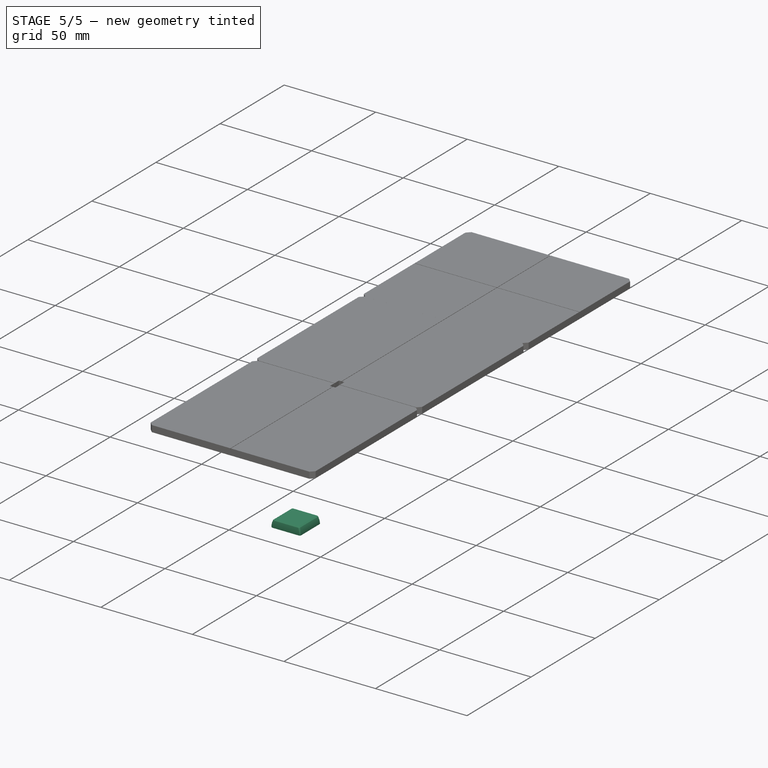
[diagram: stage 5 of 5 — iso view after this stage's code; geometry added in this stage tinted green]
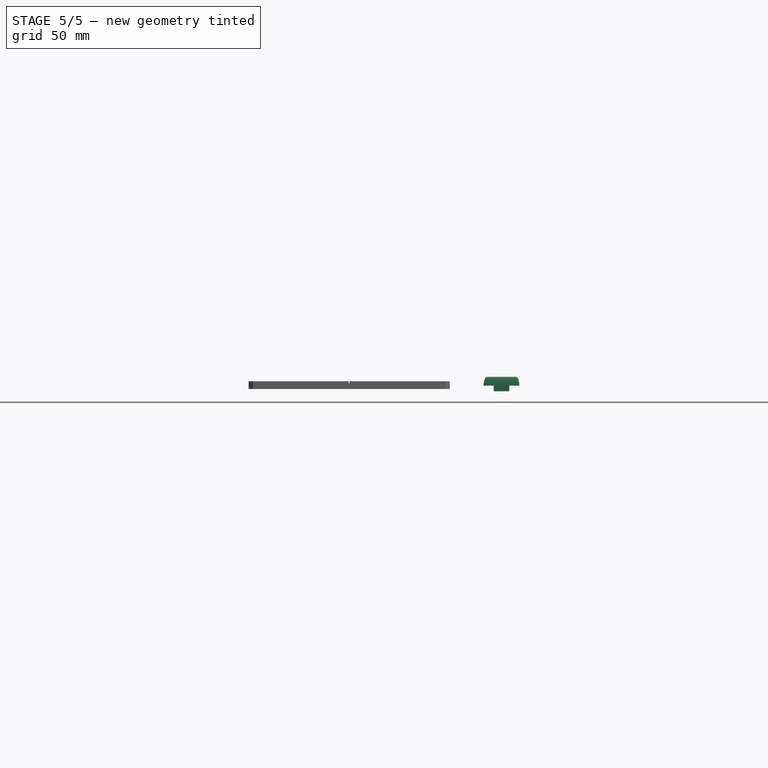
[diagram: stage 5 of 5 — front view after this stage's code; geometry added in this stage tinted green]
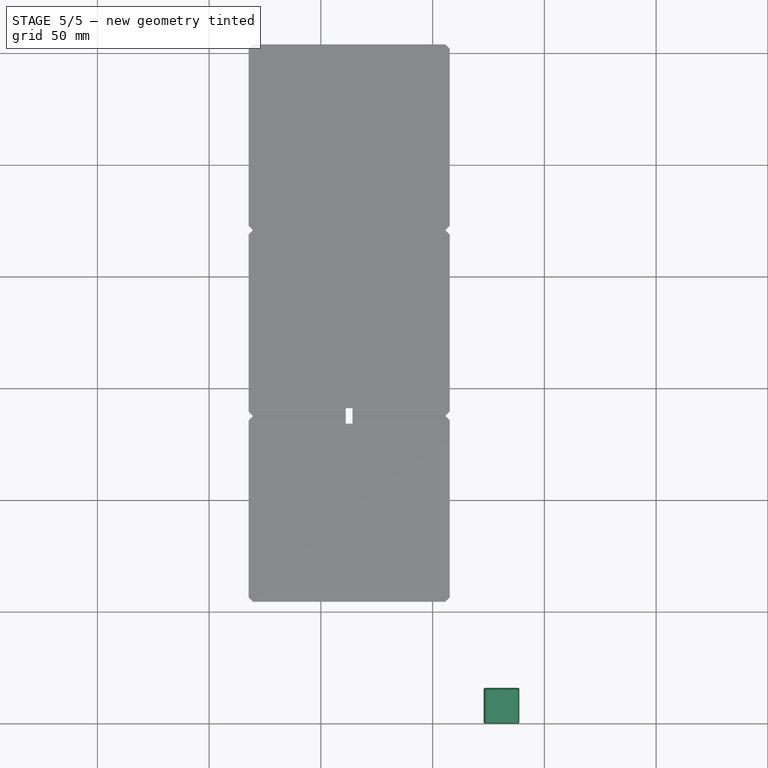
[diagram: stage 5 of 5 — top view after this stage's code; geometry added in this stage tinted green]
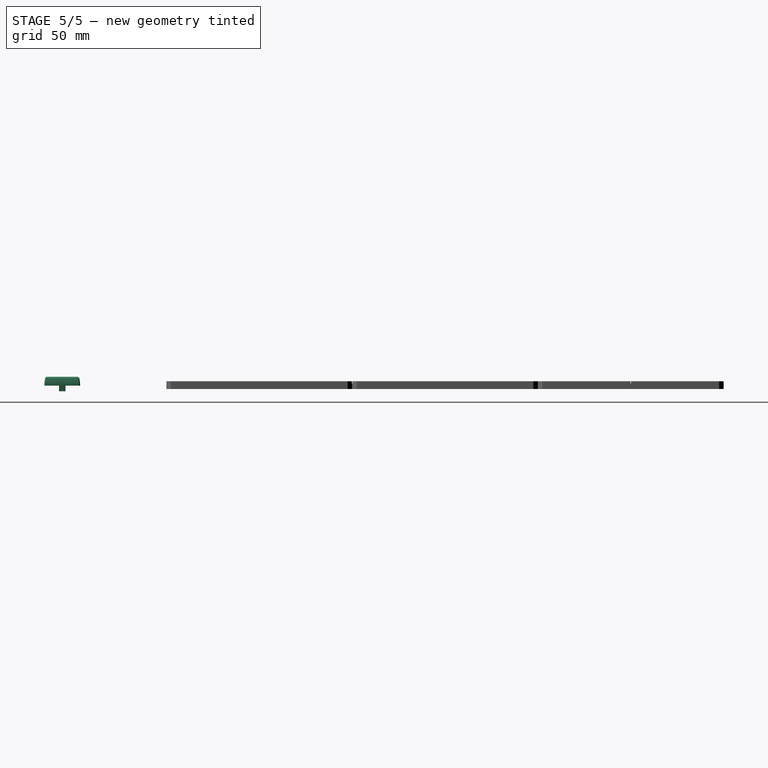
[diagram: stage 5 of 5 — right view after this stage's code; geometry added in this stage tinted green]
FEATURE [Sketcher::SketchObject] Sketch010
  ArcFitTolerance = 1e-06
  AttachmentSupport = -> [Pad]
  ExternalGeometry = -> [Pad]
  ExternalTypes = [0,0,0,0]
  FullyConstrained = true
  MakeInternals = false
  MapMode = 5
  Placement = pos=(0,0,1.5) rot=(0,0,1;0rad)
  _ExternalGeoVersion = 0
  sketch-geometry (35):
    g0: LineSegment StartX=32.022 StartY=301.965 StartZ=0 EndX=32.022 EndY=222.84 EndZ=0
    g1: LineSegment StartX=34.022 StartY=-28.535 StartZ=0 EndX=120.022 EndY=-28.535 EndZ=0
    g2: LineSegment StartX=120.022 StartY=-28.535 StartZ=0 EndX=122.022 EndY=-26.535 EndZ=0
    g3: LineSegment StartX=120.022 StartY=303.965 StartZ=0 EndX=34.022 EndY=303.965 EndZ=0
    g4: GeomPoint [constr] X=77.022 Y=-35.535 Z=0
    g5: GeomPoint [constr] X=77.022 Y=342.965 Z=0
    g6: LineSegment [constr] StartX=77.022 StartY=342.965 StartZ=0 EndX=77.022 EndY=-35.535 EndZ=0
    g7: LineSegment StartX=32.022 StartY=222.84 StartZ=0 EndX=34.022 EndY=220.84 EndZ=0
    g8: LineSegment StartX=34.022 StartY=220.84 StartZ=0 EndX=32.022 EndY=218.84 EndZ=0
    g9: LineSegment StartX=32.022 StartY=135.715 StartZ=0 EndX=34.022 EndY=137.715 EndZ=0
    g10: LineSegment StartX=34.022 StartY=137.715 StartZ=0 EndX=32.022 EndY=139.715 EndZ=0
    g11: LineSegment StartX=32.022 StartY=56.59 StartZ=0 EndX=34.022 EndY=54.59 EndZ=0
    g12: LineSegment StartX=34.022 StartY=54.59 StartZ=0 EndX=32.022 EndY=52.59 EndZ=0
    g13: LineSegment StartX=122.022 StartY=52.59 StartZ=0 EndX=120.022 EndY=54.59 EndZ=0
    g14: LineSegment StartX=120.022 StartY=54.59 StartZ=0 EndX=122.022 EndY=56.59 EndZ=0
    g15: LineSegment StartX=122.022 StartY=139.715 StartZ=0 EndX=120.022 EndY=137.715 EndZ=0
    g16: LineSegment StartX=120.022 StartY=137.715 StartZ=0 EndX=122.022 EndY=135.715 EndZ=0
    g17: LineSegment StartX=122.022 StartY=222.84 StartZ=0 EndX=122.022 EndY=301.965 EndZ=0
    g18: LineSegment StartX=120.022 StartY=220.84 StartZ=0 EndX=122.022 EndY=222.84 EndZ=0
    g19: LineSegment StartX=122.022 StartY=218.84 StartZ=0 EndX=120.022 EndY=220.84 EndZ=0
    g20: LineSegment StartX=34.022 StartY=303.965 StartZ=0 EndX=32.022 EndY=301.965 EndZ=0
    g21: LineSegment StartX=122.022 StartY=301.965 StartZ=0 EndX=120.022 EndY=303.965 EndZ=0
    g22: LineSegment [constr] StartX=34.022 StartY=220.84 StartZ=0 EndX=120.022 EndY=220.84 EndZ=0
    g23: LineSegment [constr] StartX=32.022 StartY=135.715 StartZ=0 EndX=32.022 EndY=139.715 EndZ=0
    g24: LineSegment [constr] StartX=32.022 StartY=222.84 StartZ=0 EndX=32.022 EndY=218.84 EndZ=0
    g25: LineSegment [constr] StartX=32.022 StartY=56.59 StartZ=0 EndX=32.022 EndY=52.59 EndZ=0
    g26: LineSegment [constr] StartX=34.022 StartY=54.59 StartZ=0 EndX=120.022 EndY=54.59 EndZ=0
    g27: LineSegment StartX=32.022 StartY=-26.535 StartZ=0 EndX=34.022 EndY=-28.535 EndZ=0
    g28: LineSegment [constr] StartX=34.022 StartY=137.715 StartZ=0 EndX=120.022 EndY=137.715 EndZ=0
    g29: LineSegment StartX=32.022 StartY=218.84 StartZ=0 EndX=32.022 EndY=139.715 EndZ=0
    g30: LineSegment StartX=122.022 StartY=218.84 StartZ=0 EndX=122.022 EndY=139.715 EndZ=0
    g31: LineSegment StartX=32.022 StartY=135.715 StartZ=0 EndX=32.022 EndY=56.59 EndZ=0
    g32: LineSegment StartX=122.022 StartY=135.715 StartZ=0 EndX=122.022 EndY=56.59 EndZ=0
    g33: LineSegment StartX=32.022 StartY=52.59 StartZ=0 EndX=32.022 EndY=-26.535 EndZ=0
    g34: LineSegment StartX=122.022 StartY=52.59 StartZ=0 EndX=122.022 EndY=-26.535 EndZ=0
  constraints (87):
    c: Coincident(g27,g1)
    c: Coincident(g1,g2)
    c: Coincident(g21,g3)
    c: Coincident(g20,g0)
    c: DistanceY(g2,g21) = 332.5
    c: Symmetric(g-4,g-4,g4)
    c: Symmetric(g-3,g-3,g5)
    c: Coincident(g6,g5)
    c: Coincident(g6,g4)
    c: Symmetric(g27,g1,g6)
    c: Vertical(g0)
    c: Coincident(g0,g7)
    c: Coincident(g7,g8)
    c: Coincident(g9,g10)
    c: Coincident(g11,g12)
    c: Coincident(g13,g14)
    c: Coincident(g15,g16)
    c: Coincident(g18,g17)
    c: Coincident(g19,g18)
    c: Vertical(g16,g15)
    c: Vertical(g0,g8)
    c: Vertical(g17,g19)
    c: Vertical(g11,g12)
    c: Vertical(g14,g13)
    c: Horizontal(g9,g16)
    c: Horizontal(g15,g10)
    c: Vertical(g9,g11)
    c: Vertical(g15,g13)
    c: Vertical(g18,g15)
    c: Vertical(g7,g9)
    c: Horizontal(g0,g17)
    c: Horizontal(g8,g19)
    c: Horizontal(g11,g14)
    c: Horizontal(g12,g13)
    c: DistanceX(g9,g9) = 2
    c: Symmetric(g9,g15,g6)
    c: Coincident(g3,g20)
    c: Angle(g20,g0) = 0.785398
    c: Vertical(g9,g3)
    c: Vertical(g17)
    c: Coincident(g17,g21)
    c: Symmetric(g3,g3,g6)
    c: Horizontal(g17,g0)
    c: Coincident(g22,g7)
    c: Coincident(g22,g18)
    c: Symmetric(g0,g8,g22)
    c: Coincident(g23,g9)
    c: Coincident(g23,g10)
    c: Coincident(g24,g0)
    c: Coincident(g24,g8)
    c: Equal(g24,g23)
    c: Coincident(g25,g11)
    c: Coincident(g25,g12)
    c: Coincident(g26,g11)
    c: Coincident(g26,g13)
    c: Equal(g25,g23)
    c: DistanceX(g27,g2) = 90
    c: Symmetric(g27,g2,g6)
    c: Vertical(g11,g1)
    c: Coincident(g28,g9)
    c: Coincident(g28,g15)
    c: Symmetric(g9,g10,g28)
    c: DistanceY(g-4,g1) = 7
    c: Coincident(g29,g8)
    c: Coincident(g29,g10)
    c: Vertical(g29)
    c: Coincident(g30,g19)
    c: Coincident(g30,g15)
    c: Vertical(g30)
    c: Angle(g29,g10) = 0.785398
    c: Equal(g0,g29)
    c: Coincident(g31,g9)
    c: Coincident(g31,g11)
    c: Vertical(g31)
    c: Coincident(g32,g16)
    c: Coincident(g32,g14)
    c: Vertical(g32)
    c: Symmetric(g11,g12,g26)
    c: Equal(g29,g31)
    c: Coincident(g33,g12)
    c: Coincident(g33,g27)
    c: Vertical(g33)
    c: Coincident(g34,g13)
    c: Coincident(g34,g2)
    c: Vertical(g34)
    c: Equal(g31,g33)
    c: Angle(g33,g27) = 0.785398
FEATURE [Sketcher::SketchObject] Sketch011
  ArcFitTolerance = 1e-06
  ExternalTypes = [0,0,0]
  FullyConstrained = true
  MakeInternals = false
  MapMode = 5
  Placement = pos=(0,0,-2) rot=(1,0,0;3.14159rad)
  _ExternalGeoVersion = 0
  sketch-geometry (4):
    g0: LineSegment StartX=24.522 StartY=-308.965 StartZ=0 EndX=24.522 EndY=-342.965 EndZ=0
    g1: LineSegment StartX=24.522 StartY=-342.965 StartZ=0 EndX=129.522 EndY=-342.965 EndZ=0
    g2: LineSegment StartX=129.522 StartY=-342.965 StartZ=0 EndX=129.522 EndY=-308.965 EndZ=0
    g3: LineSegment StartX=24.522 StartY=-308.965 StartZ=0 EndX=129.522 EndY=-308.965 EndZ=0
  constraints (10):
    c: Vertical(g0)
    c: Coincident(g0,g1)
    c: Vertical(g2)
    c: Coincident(g2,g-3)
    c: Coincident(g0,g-3)
    c: Horizontal(g0,g2)
    c: DistanceY(g2,g-4) = 5
    c: Coincident(g0,g3)
    c: Coincident(g1,g2)
    c: Coincident(g2,g3)
FEATURE [App::Point] Origin005  label="Origin006"
  Role = Origin
FEATURE [Sketcher::SketchObject] Sketch012
  ArcFitTolerance = 1e-06
  AttachmentSupport = -> [Origin004]
  ExternalTypes = [0]
  FullyConstrained = false
  MakeInternals = false
  MapMode = 5
  _ExternalGeoVersion = 0
  expr: Constraints[9] = href(<<Test cap>>.Sizemm)
  sketch-geometry (4):
    g0: LineSegment StartX=122.823 StartY=0 StartZ=0 EndX=138.823 EndY=0 EndZ=0
    g1: LineSegment StartX=138.823 StartY=0 StartZ=0 EndX=138.823 EndY=16 EndZ=0
    g2: LineSegment StartX=138.823 StartY=16 StartZ=0 EndX=122.823 EndY=16 EndZ=0
    g3: LineSegment StartX=122.823 StartY=16 StartZ=0 EndX=122.823 EndY=0 EndZ=0
  constraints (11):
    c: Coincident(g0,g1)
    c: Coincident(g1,g2)
    c: Coincident(g2,g3)
    c: Coincident(g3,g0)
    c: Horizontal(g0)
    c: Horizontal(g2)
    c: Vertical(g1)
    c: Vertical(g3)
    c: PointOnObject(g0,g-1)
    c: DistanceX(g2,g2) = 16
    c: DistanceY(g1,g1) = 16
FEATURE [PartDesign::Pad] Pad001
  Direction = (0,0,1)
  Length = 4
  Length2 = 10
  Profile = -> Sketch012
  ReferenceAxis = -> Sketch012 [N_Axis]
  SideType = 0
  Suppressed = false
  Type = 0
  Type2 = 0
FEATURE [Sketcher::SketchObject] Sketch013
  ArcFitTolerance = 1e-06
  AttachmentSupport = -> [Pad001]
  ExternalGeometry = -> [Pad001]
  ExternalTypes = [0,0]
  FullyConstrained = false
  MakeInternals = false
  MapMode = 5
  Placement = pos=(0,0,0) rot=(1,0,0;1.5708rad)
  _ExternalGeoVersion = 0
  expr: Constraints[7] = href(<<Test cap>>.Sizemm) - 1.8
  sketch-geometry (6):
    g0: ArcOfCircle CenterX=132.162 CenterY=0 CenterZ=0 NormalX=0 NormalY=0 NormalZ=1 AngleXU=0 Radius=9.33889 StartAngle=2.69896 EndAngle=3.14159
    g1: ArcOfCircle CenterX=129.485 CenterY=0 CenterZ=0 NormalX=0 NormalY=0 NormalZ=1 AngleXU=0 Radius=9.33889 StartAngle=0 EndAngle=0.442629
    g2: LineSegment StartX=123.723 StartY=4 StartZ=0 EndX=122.823 EndY=4 EndZ=0
    g3: LineSegment StartX=122.823 StartY=4 StartZ=0 EndX=122.823 EndY=1.3e-15 EndZ=0
    g4: LineSegment StartX=137.923 StartY=4 StartZ=0 EndX=138.823 EndY=4 EndZ=0
    g5: LineSegment StartX=138.823 StartY=4 StartZ=0 EndX=138.823 EndY=0 EndZ=0
  constraints (16):
    c: PointOnObject(g0,g-1)
    c: Coincident(g0,g-3)
    c: PointOnObject(g1,g-1)
    c: Horizontal(g-3,g0)
    c: Coincident(g1,g-4)
    c: Horizontal(g1,g-4)
    c: Equal(g0,g1)
    c: DistanceX(g0,g1) = 14.2
    c: Coincident(g0,g2)
    c: Coincident(g2,g3)
    c: Coincident(g3,g0)
    c: Vertical(g3)
    c: Coincident(g1,g4)
    c: Coincident(g4,g5)
    c: Coincident(g5,g1)
    c: Vertical(g5)
FEATURE [PartDesign::Pocket] Pocket011
  BaseFeature = -> Pad001
  Direction = (0,1,-2e-16)
  Length = 5
  Length2 = 5
  Profile = -> Sketch013
  ReferenceAxis = -> Sketch013 [N_Axis]
  SideType = 0
  Suppressed = false
  Type = 1
  Type2 = 0
FEATURE [Sketcher::SketchObject] Sketch014
  ArcFitTolerance = 1e-06
  AttachmentSupport = -> [Pad001]
  ExternalGeometry = -> [Pad001]
  ExternalTypes = [0,0]
  FullyConstrained = true
  MakeInternals = false
  MapMode = 5
  Placement = pos=(138.823,0,0) rot=(0.57735,0.57735,0.57735;2.0944rad)
  _ExternalGeoVersion = 0
  sketch-geometry (6):
    g0: ArcOfCircle CenterX=16.25 CenterY=0 CenterZ=0 NormalX=0 NormalY=0 NormalZ=1 AngleXU=0 Radius=16.25 StartAngle=2.89288 EndAngle=3.14159
    g1: ArcOfCircle CenterX=-0.25 CenterY=0 CenterZ=0 NormalX=0 NormalY=0 NormalZ=1 AngleXU=0 Radius=16.25 StartAngle=2e-16 EndAngle=0.24871
    g2: LineSegment StartX=0.5 StartY=4 StartZ=0 EndX=0 EndY=4 EndZ=0
    g3: LineSegment StartX=-3.6e-15 StartY=2e-15 StartZ=0 EndX=0 EndY=4 EndZ=0
    g4: LineSegment StartX=15.5 StartY=4 StartZ=0 EndX=16 EndY=4 EndZ=0
    g5: LineSegment StartX=16 StartY=4 StartZ=0 EndX=16 EndY=3.1e-15 EndZ=0
  constraints (16):
    c: PointOnObject(g0,g-1)
    c: Coincident(g0,g-3)
    c: PointOnObject(g1,g-1)
    c: Coincident(g1,g-4)
    c: Horizontal(g1,g-4)
    c: Horizontal(g-3,g0)
    c: Equal(g0,g1)
    c: DistanceX(g0,g1) = 15
    c: Coincident(g2,g0)
    c: Coincident(g2,g-3)
    c: Coincident(g3,g0)
    c: Coincident(g3,g2)
    c: Coincident(g4,g1)
    c: Coincident(g4,g-4)
    c: Coincident(g5,g4)
    c: Coincident(g5,g1)
FEATURE [PartDesign::Pocket] Pocket012
  BaseFeature = -> Pocket011
  Direction = (-1,0,0)
  Length = 5
  Length2 = 5
  Profile = -> Sketch014
  ReferenceAxis = -> Sketch014 [N_Axis]
  SideType = 0
  Suppressed = false
  Type = 1
  Type2 = 0
FEATURE [Sketcher::SketchObject] Sketch015
  ArcFitTolerance = 1e-06
  ExternalGeometry = -> [Pad001]
  ExternalTypes = [0,0]
  FullyConstrained = true
  MakeInternals = false
  MapMode = 5
  Placement = pos=(127.96,8.35,0) rot=(0.707107,0.707107,0;3.14159rad)
  _ExternalGeoVersion = 0
  sketch-geometry (5):
    g0: LineSegment StartX=-1.8 StartY=6.31325 StartZ=0 EndX=-1.8 EndY=-0.586753 EndZ=0
    g1: LineSegment StartX=-1.8 StartY=-0.586753 StartZ=0 EndX=1.1 EndY=-0.586753 EndZ=0
    g2: LineSegment StartX=1.1 StartY=-0.586753 StartZ=0 EndX=1.1 EndY=6.31325 EndZ=0
    g3: LineSegment StartX=1.1 StartY=6.31325 StartZ=0 EndX=-1.8 EndY=6.31325 EndZ=0
    g4: GeomPoint [constr] X=-0.35 Y=2.86325 Z=0
  constraints (12):
    c: Coincident(g0,g1)
    c: Coincident(g1,g2)
    c: Coincident(g2,g3)
    c: Coincident(g3,g0)
    c: Vertical(g0)
    c: Vertical(g2)
    c: Horizontal(g1)
    c: Horizontal(g3)
    c: DistanceX(g3,g3) = 2.9
    c: DistanceY(g0,g0) = 6.9
    c: Symmetric(g0,g2,g4)
    c: Symmetric(g-4,g-3,g4)
FEATURE [PartDesign::Pad] Pad002
  BaseFeature = -> Pocket012
  Direction = (1e-16,-1e-16,-1)
  Length = 2.5
  Length2 = 10
  Profile = -> Sketch015
  ReferenceAxis = -> Sketch015 [N_Axis]
  SideType = 0
  Suppressed = false
  Type = 0
  Type2 = 0
FEATURE [PartDesign::Chamfer] Chamfer
  Angle = 45
  Base = -> Pad002 [Edge10,Edge9,Edge15,Edge12,Edge13,Edge16,Edge14,Edge11]
  BaseFeature = -> Pad002
  ChamferType = 0
  FlipDirection = false
  Size = 0.5
  Size2 = 1
  SupportTransform = false
  Suppressed = false
  UseAllEdges = false
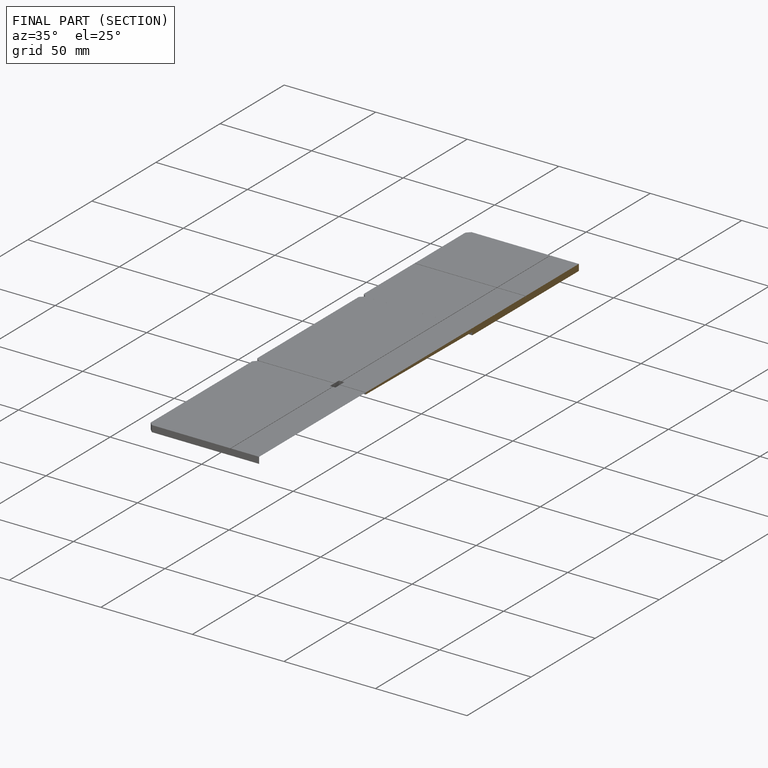
[diagram: finished part — half-section view (interior)]
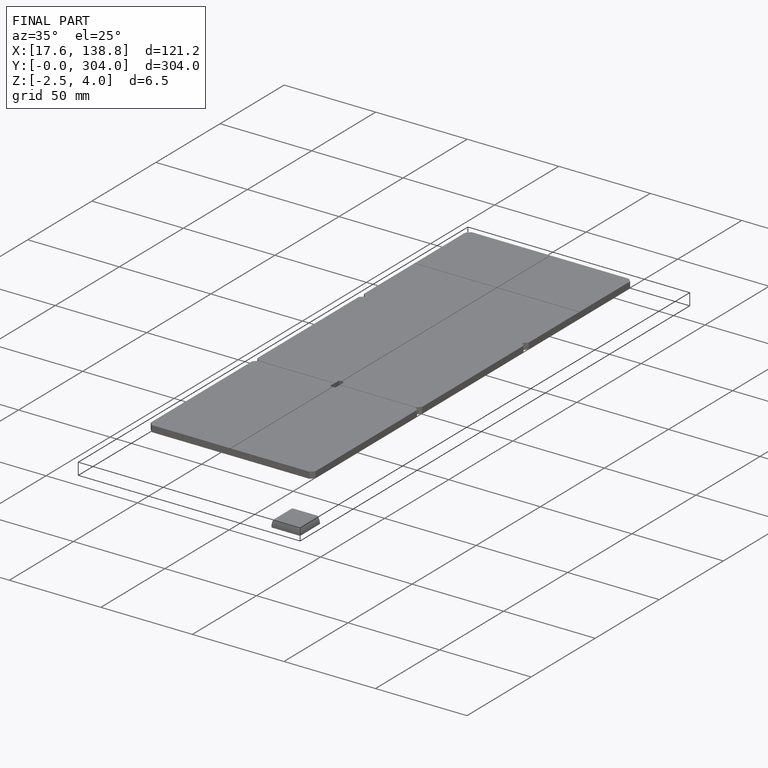
[diagram: finished part — iso view with bounding-box wireframe]
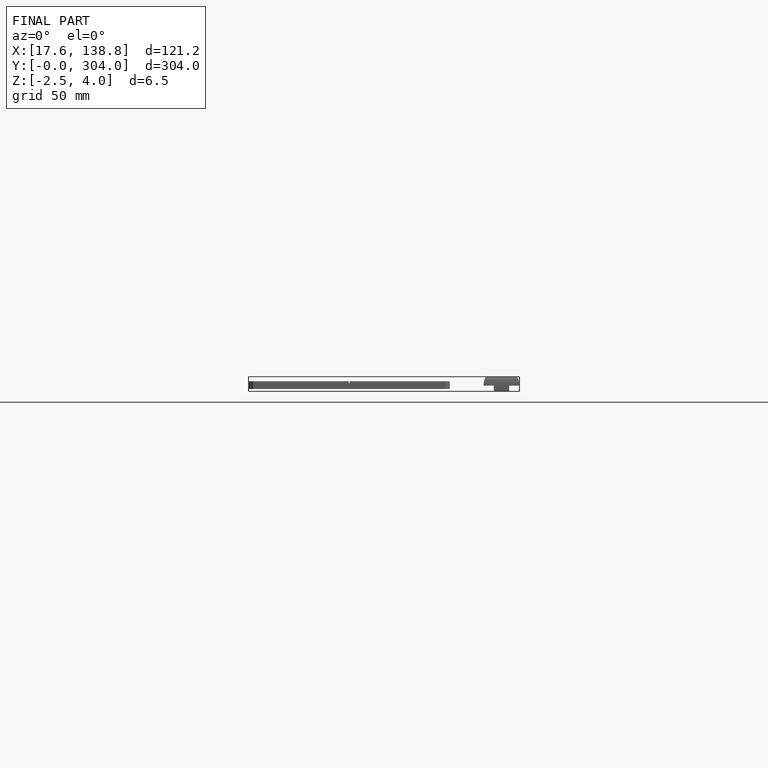
[diagram: finished part — front view with bounding-box wireframe]
